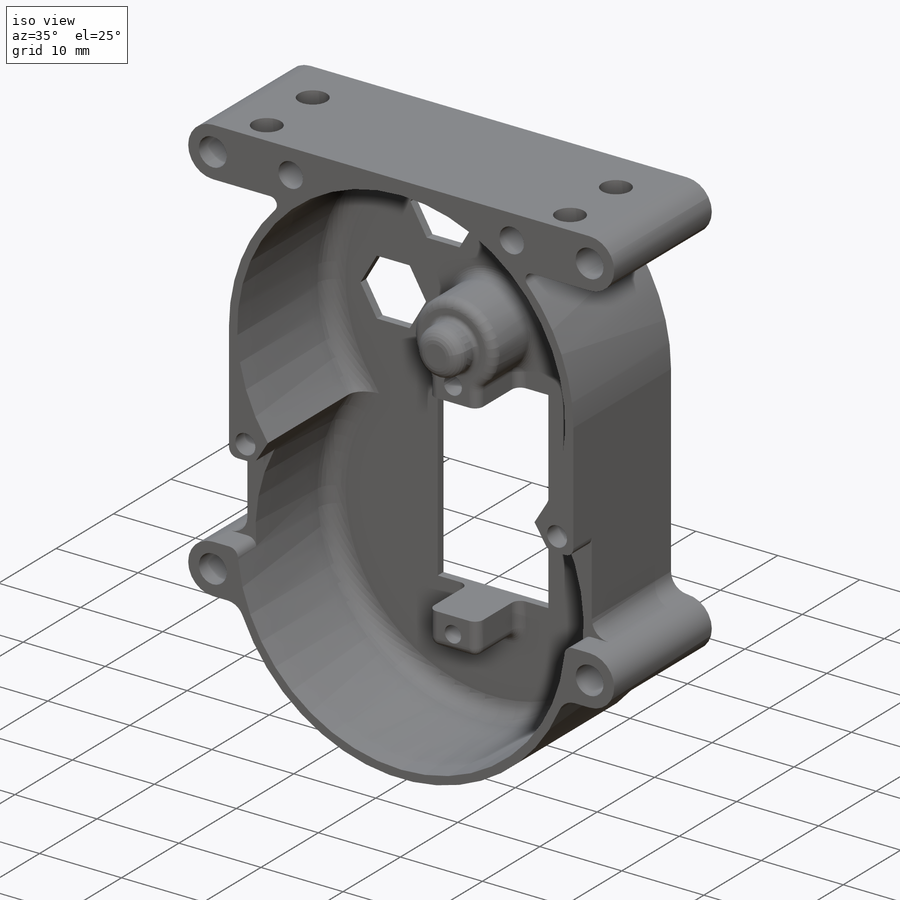
[diagram: iso view]
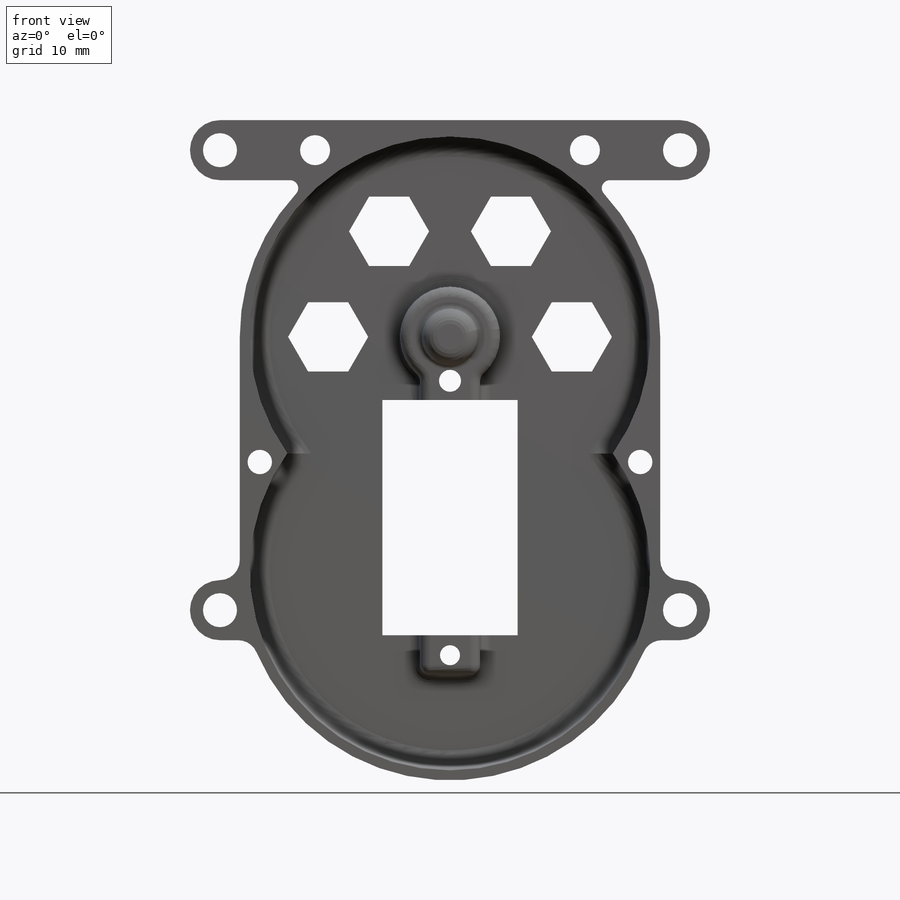
[diagram: front view]
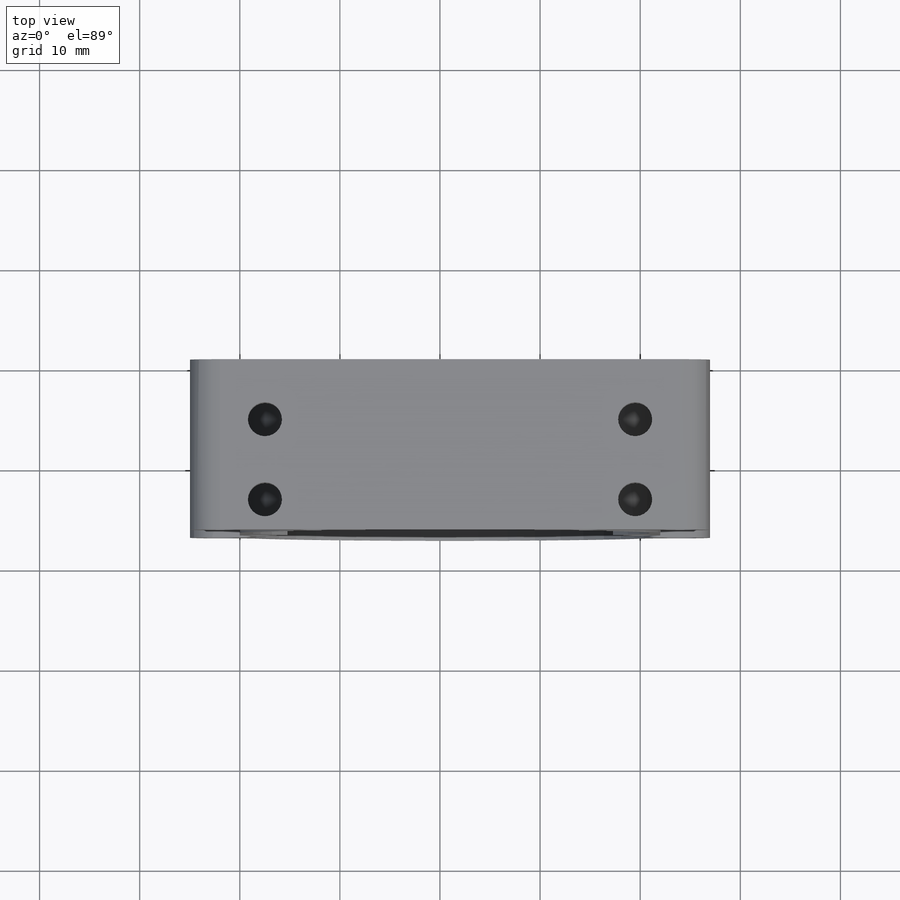
[diagram: top view]
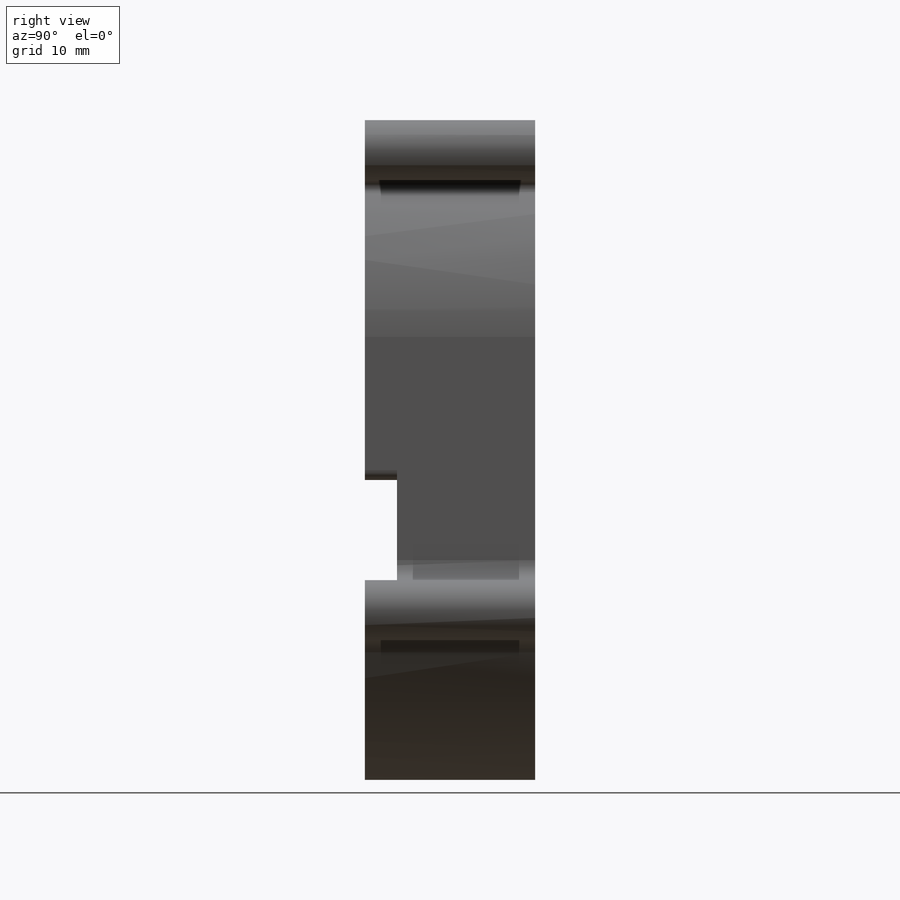
[diagram: right view]
SOLIDWORKS PART (.sldprt)
format: sldprt  version: not decoded by parser v0  size: 740,864 bytes
history: native  units: mm
features: sketch x16, fillet x12, cut_extrude x9, extrude x7, plane x3, material x1, pattern_circular x1 (+10 scaffold rows collapsed)
feature tree (59):
  scaffold x10  (default folders/planes/origin — collapsed)
  material  "Material <nicht angegeben>"
  plane  "Ebene vorne"
  plane  "Ebene oben"
  plane  "Ebene rechts"
  sketch  "groundplate"  dims[c1.D4=22.0mm c1.D1=23.3mm c1.D2=22.0mm c1.D3=22.0mm c2.D4=23.5mm c2.D2=42.0mm c2.D3=23.3mm]
  extrude  "body"  Depth=17mm
  sketch  "main-box"  dims[c1.D1=40.0mm c1.D2=~38.493732mm c2.D1=44.0mm]
  cut_extrude  "box"  Depth=16mm
  sketch  "rack-channel"  dims[c1.D1=~7.574815mm c1.D2=44.0mm c2.D1=1.0mm c2.D2=10.0mm]
  cut_extrude  "rack-ch"  Depth=3.2mm
  extrude  "Achse2"  [1 undecoded]
  fillet  "Verrundung1"  Radius=1mm
  sketch  "wings-"  dims[c1.D3=21.0mm c1.D4=21.0mm c1.D7=21.0mm c1.D1=6.0mm c1.D2=2.0mm c2.D3=2.0mm c2.D4=1.0mm c2.D5=6.0mm c2.D6=2.0mm c2.D7=~3.177187mm c3.D6=2.0mm c3.D7=~3.177187mm]
  extrude  "wings"  Depth=17mm
  sketch  "Skizze6"  dims[D1=3.4mm D2=~3.548285mm]
  cut_extrude  "wing-hole"  [1 undecoded]
  fillet  "Verrundung2"  Radius=2mm
  fillet  "Verrundung3"  Radius=2mm
  sketch  "servo-cut"  dims[c1.D1=6.5mm c1.D2=~39.485299mm c1.D3=~7.781564mm c2.D2=23.5mm c2.D3=13.5mm]
  cut_extrude  "servo-hole"  [1 undecoded]
  sketch  "Skizze8"  dims[c1.D1=~6.172596mm c1.D2=~5.172602mm c2.D1=6.0mm c2.D2=4.0mm c2.D3=~6.401229mm c2.D4=6.0mm c3.D3=4.0mm c3.D4=6.0mm]
  extrude  "servo-bore"  Depth=7mm
  sketch  "Skizze10"  dims[D1=10.0mm]
  extrude  "gear-holder"  Depth=7mm
  sketch  "main-gear-axis"  dims[D1=5.6mm]
  extrude  "axis"  Depth=3mm
  fillet  "Verrundung11"  Radius=1.5mm
  fillet  "Verrundung12"  Radius=0.5mm
  fillet  "Verrundung13"  Radius=1mm
  sketch  "screw-hole"  dims[c1.D1=2.0mm c1.D2=~1.299356mm c1.D3=2.2mm c2.D1=~0.99714mm c2.D2=1.0mm]
  cut_extrude  "servo-holder-hole"  [1 undecoded]
  fillet  "Verrundung14"  Radius=1mm
  fillet  "Verrundung17"  Radius=1mm
  fillet  "Verrundung18"  Radius=2mm
  fillet  "Verrundung19"  Radius=1mm
  fillet  "Verrundung20"  Radius=1mm
  sketch  "Skizze11"  dims[D1=~20.35999mm]
  sketch  "Skizze12"  dims[D1=4.0mm]
  cut_extrude  "Schnitt-Linear austragen1"  [1 undecoded]
  pattern_circular  "Kreismuster1"  Count=4 Angle=180deg
  sketch  "Skizze13"  dims[c1.D1=~2.43862mm c1.D3=~2.655408mm c2.D1=2.0mm c2.D2=12.5mm c2.D3=2.0mm]
  cut_extrude  "Schnitt-Linear austragen2"  [1 undecoded]
  sketch  "base-wings"  dims[c1.D3=6.0mm c1.D4=~8.960978mm c2.D3=3.4mm c2.D4=21.0mm c2.D1=31.3mm c2.D2=~42.552354mm c3.D1=0.0mm c3.D2=~45.952354mm c4.D1=~45.44159mm c4.D2=~45.952354mm c5.D1=45.95mm c5.D2=~45.952354mm c5.D3=~45.952354mm c5.D4=~8.973409mm]
  extrude  "base"  Depth=17mm
  sketch  "Skizze15"  dims[c1.D1=~11.721773mm c1.D3=3.4mm c1.D4=~3.359291mm c2.D1=6.0mm c2.D2=3.0mm c2.D4=6.0mm c2.D5=3.0mm]
  cut_extrude  "base-holes"  [1 undecoded]
  fillet  "Verrundung22"  Radius=0.8mm
  sketch  "Skizze16"  dims[D1=~52.340811mm D2=8.0mm D3=12.5mm D4=8.0mm D5=12.5mm]
  cut_extrude  "Schnitt-Linear austragen4"  [1 undecoded]
decode coverage: 37 of 45 modeling features carry decoded parameters
note: ~ marks probable driven/reference dimensions
note: 8 parameter values undecoded
summary: no parameter record found for 8 features
note: suppression state not decoded; provenance and decode notes live in map.json
